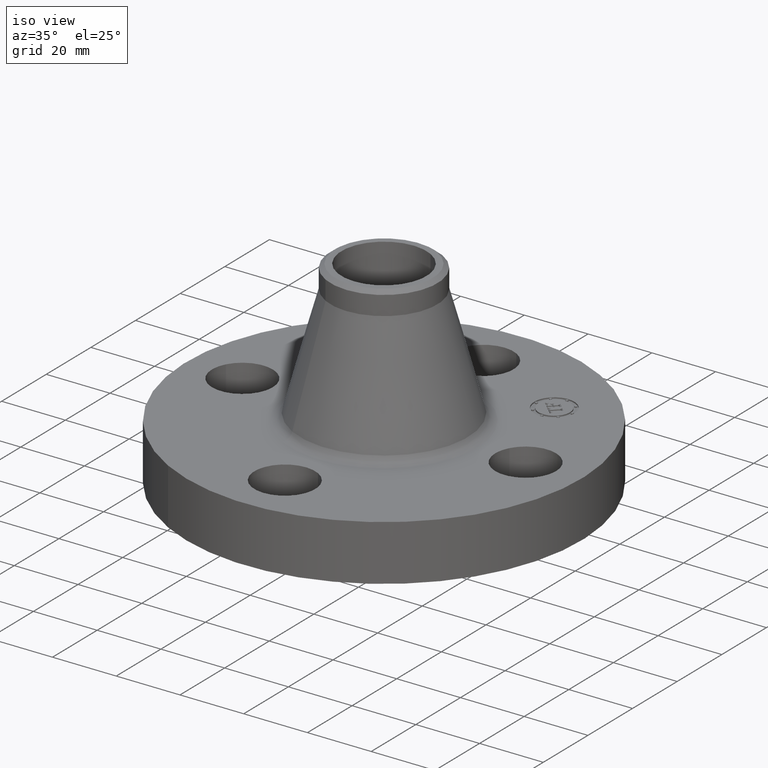
[diagram: clean part render]
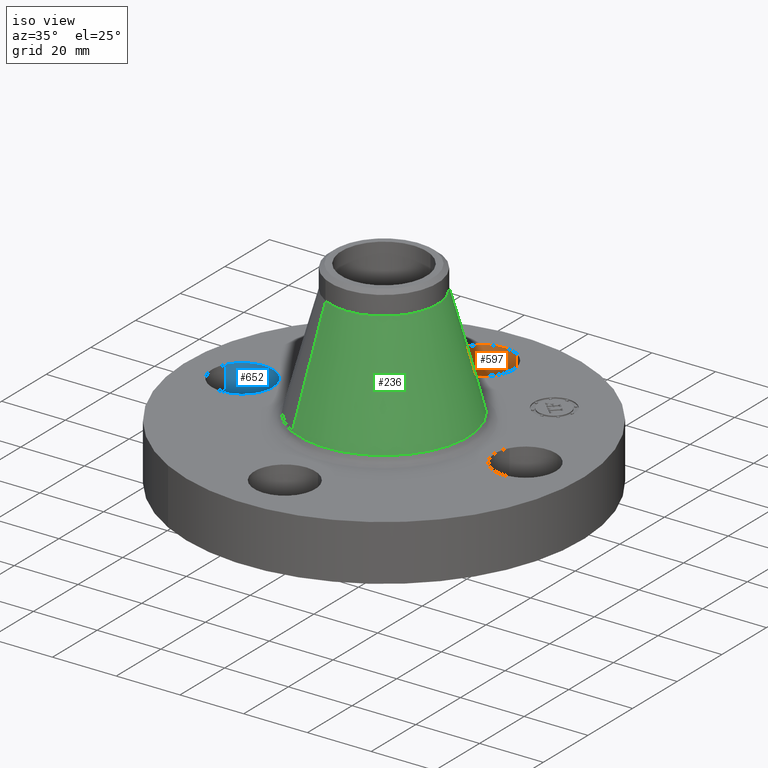
[diagram: same view with three faces highlighted in distinct colors, each labeled with its STEP entity id]
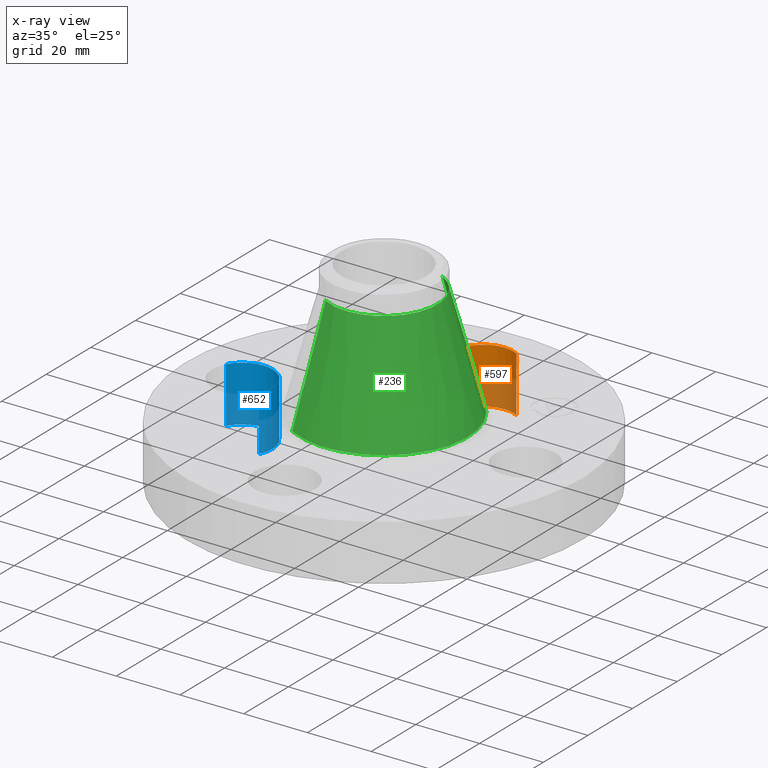
[diagram: x-ray of the same camera — body ghosted, the three highlighted faces saturated]
A machine part, iso view with three faces highlighted in distinct colors.
The next image is the same camera in x-ray (body ghosted, the three faces saturated) — at least one of them is partly hidden behind the body in this view.
Their STEP definitions:

[orange] entity #597 — the highlighted cylindrical surface (partial cylindrical patch) has radius 9.525 mm, axis along (0, 0, -1).
#550=AXIS2_PLACEMENT_3D('Circle Axis2P3D',#548,#549,$) ;
#570=AXIS2_PLACEMENT_3D('Cylinder Axis2P3D',#567,#568,#569) ;
#588=AXIS2_PLACEMENT_3D('Circle Axis2P3D',#586,#587,$) ;
#548=CARTESIAN_POINT('Axis2P3D Location',(-4.19611851827E-016,1.75000000001,0.)) ;
#552=CARTESIAN_POINT('Vertex',(-0.179784576977,1.4209065393,0.)) ;
#554=CARTESIAN_POINT('Vertex',(0.179784576977,2.07909346072,0.)) ;
#567=CARTESIAN_POINT('Axis2P3D Location',(-3.21469784777E-016,1.75000000001,0.686062992129)) ;
#572=CARTESIAN_POINT('Line Origine',(-0.179784576977,1.4209065393,0.345000000001)) ;
#576=CARTESIAN_POINT('Vertex',(-0.179784576977,1.4209065393,0.690000000003)) ;
#579=CARTESIAN_POINT('Line Origine',(0.179784576977,2.07909346072,0.345000000001)) ;
#583=CARTESIAN_POINT('Vertex',(0.179784576977,2.07909346072,0.690000000003)) ;
#586=CARTESIAN_POINT('Axis2P3D Location',(-3.21469784777E-016,1.75000000001,0.690000000003)) ;
#549=DIRECTION('Axis2P3D Direction',(0.,0.,-0.0393700787402)) ;
#568=DIRECTION('Axis2P3D Direction',(0.,0.,-0.0393700787402)) ;
#569=DIRECTION('Axis2P3D XDirection',(0.0188750212049,0.0345504945626,0.)) ;
#573=DIRECTION('Vector Direction',(0.,0.,-0.0393700787402)) ;
#580=DIRECTION('Vector Direction',(0.,0.,-0.0393700787402)) ;
#587=DIRECTION('Axis2P3D Direction',(0.,0.,-0.0393700787402)) ;
#574=VECTOR('Line Direction',#573,0.0393700787402) ;
#581=VECTOR('Line Direction',#580,0.0393700787402) ;
#592=ORIENTED_EDGE('',*,*,#578,.F.) ;
#593=ORIENTED_EDGE('',*,*,#556,.T.) ;
#594=ORIENTED_EDGE('',*,*,#585,.T.) ;
#595=ORIENTED_EDGE('',*,*,#590,.F.) ;
#597=ADVANCED_FACE('PartBody',(#596),#571,.F.) ;
#551=CIRCLE('generated circle',#550,0.375000000001) ;
#589=CIRCLE('generated circle',#588,0.375000000001) ;
#571=CYLINDRICAL_SURFACE('generated cylinder',#570,0.375000000001) ;
#556=EDGE_CURVE('',#553,#555,#551,.T.) ;
#578=EDGE_CURVE('',#553,#577,#575,.F.) ;
#585=EDGE_CURVE('',#555,#584,#582,.F.) ;
#590=EDGE_CURVE('',#577,#584,#589,.T.) ;
#591=EDGE_LOOP('',(#592,#593,#594,#595)) ;
#596=FACE_OUTER_BOUND('',#591,.T.) ;
#575=LINE('Line',#572,#574) ;
#582=LINE('Line',#579,#581) ;
#553=VERTEX_POINT('',#552) ;
#555=VERTEX_POINT('',#554) ;
#577=VERTEX_POINT('',#576) ;
#584=VERTEX_POINT('',#583) ;

[blue] entity #652 — the highlighted cylindrical surface (partial cylindrical patch) has radius 9.525 mm, axis along (-0, 0, -1).
#541=AXIS2_PLACEMENT_3D('Circle Axis2P3D',#539,#540,$) ;
#613=AXIS2_PLACEMENT_3D('Cylinder Axis2P3D',#610,#611,#612) ;
#643=AXIS2_PLACEMENT_3D('Circle Axis2P3D',#641,#642,$) ;
#534=CARTESIAN_POINT('Vertex',(-1.4209065393,-0.179784576977,0.)) ;
#536=CARTESIAN_POINT('Vertex',(-2.07909346072,0.179784576977,0.)) ;
#539=CARTESIAN_POINT('Axis2P3D Location',(-1.75000000001,-2.79741234551E-016,0.)) ;
#610=CARTESIAN_POINT('Axis2P3D Location',(-1.75000000001,-2.14313189852E-016,0.686062992129)) ;
#615=CARTESIAN_POINT('Line Origine',(-1.4209065393,-0.179784576977,0.345000000001)) ;
#619=CARTESIAN_POINT('Vertex',(-1.4209065393,-0.179784576977,0.690000000003)) ;
#622=CARTESIAN_POINT('Line Origine',(-2.07909346072,0.179784576977,0.345000000001)) ;
#626=CARTESIAN_POINT('Vertex',(-2.07909346072,0.179784576977,0.690000000003)) ;
#641=CARTESIAN_POINT('Axis2P3D Location',(-1.75000000001,-2.14313189852E-016,0.690000000003)) ;
#540=DIRECTION('Axis2P3D Direction',(0.,0.,-0.0393700787402)) ;
#611=DIRECTION('Axis2P3D Direction',(-0.,0.,-0.0393700787402)) ;
#612=DIRECTION('Axis2P3D XDirection',(-0.0345504945626,0.0188750212049,0.)) ;
#616=DIRECTION('Vector Direction',(0.,0.,-0.0393700787402)) ;
#623=DIRECTION('Vector Direction',(0.,0.,-0.0393700787402)) ;
#642=DIRECTION('Axis2P3D Direction',(-0.,0.,-0.0393700787402)) ;
#617=VECTOR('Line Direction',#616,0.0393700787402) ;
#624=VECTOR('Line Direction',#623,0.0393700787402) ;
#647=ORIENTED_EDGE('',*,*,#628,.F.) ;
#648=ORIENTED_EDGE('',*,*,#543,.T.) ;
#649=ORIENTED_EDGE('',*,*,#621,.T.) ;
#650=ORIENTED_EDGE('',*,*,#645,.F.) ;
#652=ADVANCED_FACE('PartBody',(#651),#614,.F.) ;
#542=CIRCLE('generated circle',#541,0.375000000002) ;
#644=CIRCLE('generated circle',#643,0.375000000002) ;
#614=CYLINDRICAL_SURFACE('generated cylinder',#613,0.375000000002) ;
#543=EDGE_CURVE('',#537,#535,#542,.T.) ;
#621=EDGE_CURVE('',#535,#620,#618,.F.) ;
#628=EDGE_CURVE('',#537,#627,#625,.F.) ;
#645=EDGE_CURVE('',#627,#620,#644,.T.) ;
#646=EDGE_LOOP('',(#647,#648,#649,#650)) ;
#651=FACE_OUTER_BOUND('',#646,.T.) ;
#618=LINE('Line',#615,#617) ;
#625=LINE('Line',#622,#624) ;
#535=VERTEX_POINT('',#534) ;
#537=VERTEX_POINT('',#536) ;
#620=VERTEX_POINT('',#619) ;
#627=VERTEX_POINT('',#626) ;

[green] entity #236 — the highlighted conical surface has half-angle 15.22 deg.
#172=AXIS2_PLACEMENT_3D('Circle Axis2P3D',#170,#171,$) ;
#209=AXIS2_PLACEMENT_3D('Cone Axis2P3D',#206,#207,#208) ;
#220=AXIS2_PLACEMENT_3D('Circle Axis2P3D',#218,#219,$) ;
#167=CARTESIAN_POINT('Vertex',(0.496647878182,0.909107843027,0.778497079682)) ;
#170=CARTESIAN_POINT('Axis2P3D Location',(0.,0.,0.778497079682)) ;
#174=CARTESIAN_POINT('Vertex',(-0.496647878182,-0.909107843027,0.778497079682)) ;
#206=CARTESIAN_POINT('Axis2P3D Location',(0.,0.,2.16022616857)) ;
#211=CARTESIAN_POINT('Line Origine',(0.406534366831,0.744156166938,1.46936162413)) ;
#215=CARTESIAN_POINT('Vertex',(0.31642085548,0.57920449085,2.16022616857)) ;
#218=CARTESIAN_POINT('Axis2P3D Location',(0.,0.,2.16022616857)) ;
#222=CARTESIAN_POINT('Vertex',(-0.31642085548,-0.57920449085,2.16022616857)) ;
#225=CARTESIAN_POINT('Line Origine',(-0.406534366831,-0.744156166938,1.46936162413)) ;
#171=DIRECTION('Axis2P3D Direction',(0.,0.,-0.0393700787402)) ;
#207=DIRECTION('Axis2P3D Direction',(0.,0.,-0.0393700787402)) ;
#208=DIRECTION('Axis2P3D XDirection',(-0.0188750212049,-0.0345504945626,0.)) ;
#212=DIRECTION('Vector Direction',(0.00495515240905,0.00907034564397,-0.0379891878632)) ;
#219=DIRECTION('Axis2P3D Direction',(0.,0.,-0.0393700787402)) ;
#226=DIRECTION('Vector Direction',(-0.00495515240905,-0.00907034564397,-0.0379891878632)) ;
#213=VECTOR('Line Direction',#212,0.0393700787402) ;
#227=VECTOR('Line Direction',#226,0.0393700787402) ;
#231=ORIENTED_EDGE('',*,*,#176,.F.) ;
#232=ORIENTED_EDGE('',*,*,#217,.T.) ;
#233=ORIENTED_EDGE('',*,*,#224,.T.) ;
#234=ORIENTED_EDGE('',*,*,#229,.F.) ;
#236=ADVANCED_FACE('PartBody',(#235),#210,.T.) ;
#173=CIRCLE('generated circle',#172,1.03592286641) ;
#221=CIRCLE('generated circle',#220,0.660000000003) ;
#210=CONICAL_SURFACE('Cone',#209,0.660000000003,0.2656373701) ;
#176=EDGE_CURVE('',#168,#175,#173,.T.) ;
#217=EDGE_CURVE('',#168,#216,#214,.F.) ;
#224=EDGE_CURVE('',#216,#223,#221,.T.) ;
#229=EDGE_CURVE('',#175,#223,#228,.F.) ;
#230=EDGE_LOOP('',(#231,#232,#233,#234)) ;
#235=FACE_OUTER_BOUND('',#230,.T.) ;
#214=LINE('Line',#211,#213) ;
#228=LINE('Line',#225,#227) ;
#168=VERTEX_POINT('',#167) ;
#175=VERTEX_POINT('',#174) ;
#216=VERTEX_POINT('',#215) ;
#223=VERTEX_POINT('',#222) ;